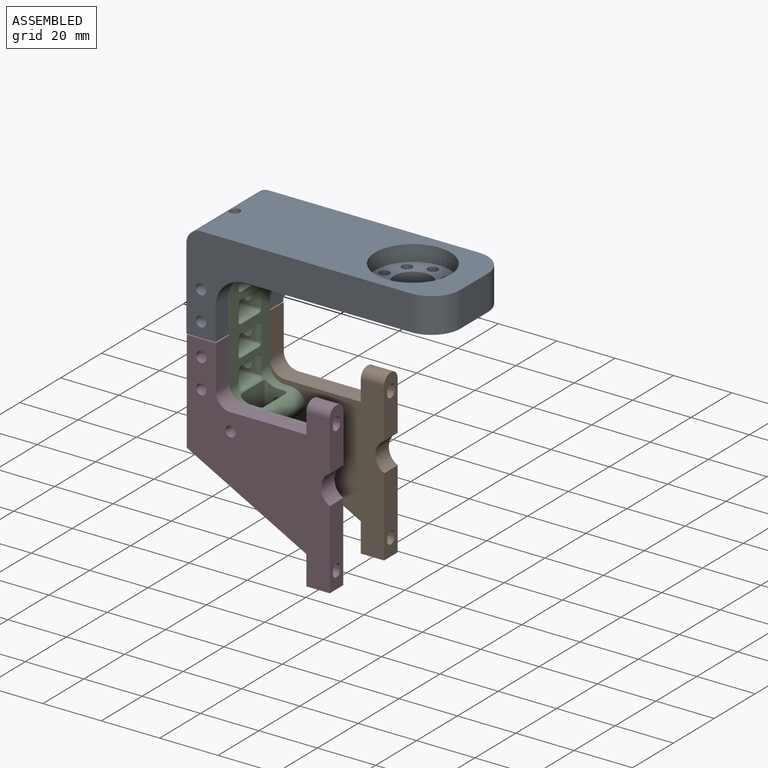
[diagram: assembled view]
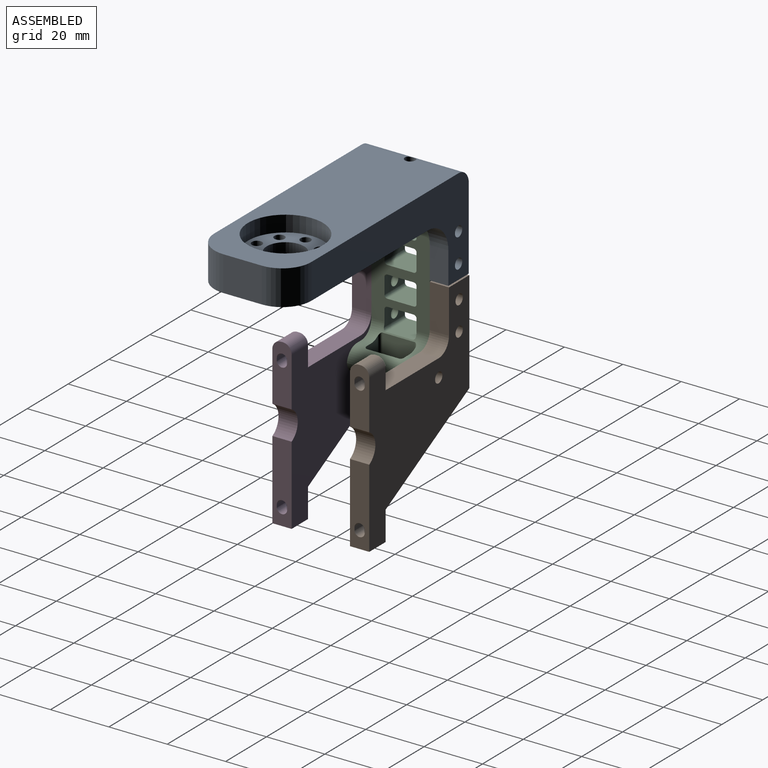
[diagram: assembled view, second angle]
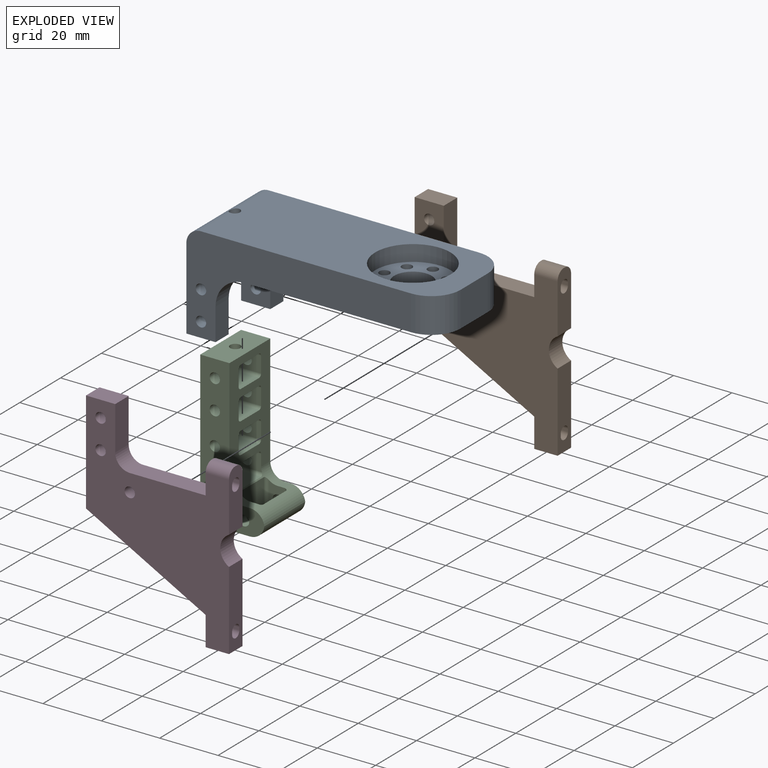
[diagram: exploded view]
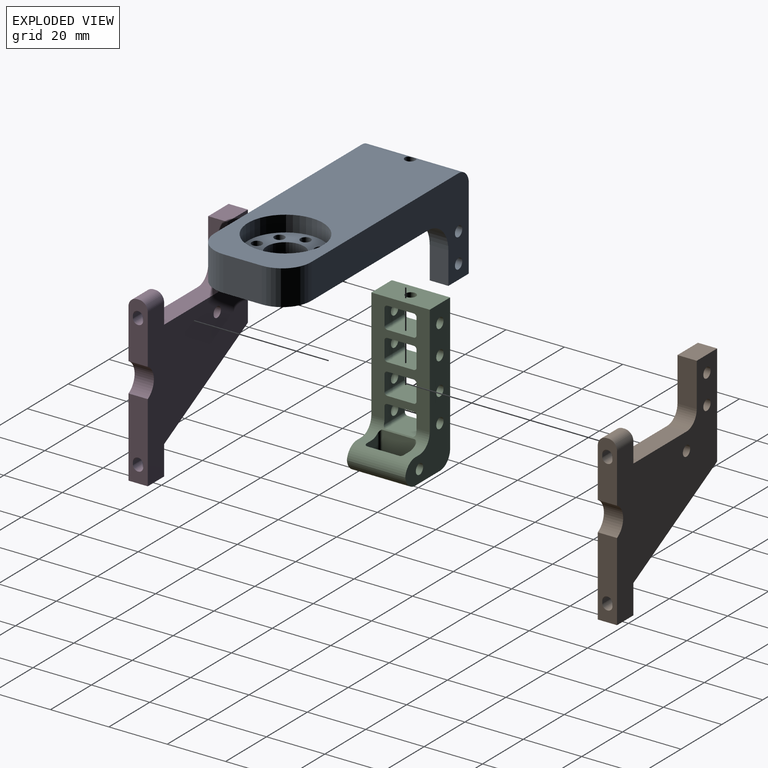
[diagram: exploded view, second angle]
ASSEMBLY  parts=4 mates=4
PART A: 33 faces, bbox 87x33.2x33 mm
  f0: cylinder r=6.41mm len=12.83mm, axis (0,0,-1), area 261.9mm2, adj f9,f30
  f1: cylinder r=1.75mm len=6.5mm, axis (0,0,-1), area 71.6mm2, adj f9,f30
  f2: cylinder r=1.75mm len=6.5mm, axis (0,0,-1), area 71.6mm2, adj f9,f30
  f3: cylinder r=1.75mm len=6.5mm, axis (0,0,-1), area 71.6mm2, adj f9,f30
  f4: cylinder r=1.75mm len=6.5mm, axis (0,0,-1), area 71.6mm2, adj f9,f30
  f5: cylinder r=1.75mm len=6.5mm, axis (0,0,-1), area 71.6mm2, adj f9,f30
  f6: cylinder r=1.75mm len=6.5mm, axis (0,0,-1), area 71.6mm2, adj f9,f30
  f7: cylinder r=1.75mm len=6.5mm, axis (0,0,-1), area 71.6mm2, adj f9,f30
  f8: cylinder r=1.75mm len=6.5mm, axis (0,0,-1), area 71.6mm2, adj f9,f30
  f9: plane 87x33.2mm, normal (0,0,1), area 2373.1mm2, adj f0,f1,f2,f3,f4,f5,f6,f7
  f10: plane 13.2x12mm, normal (1,0,0), area 158.4mm2, adj f9,f11,f15,f17
  f11: cylinder r=10mm len=12mm, axis (0,0,-1), area 188.5mm2, adj f9,f10,f12,f17
  f12: plane 77x33mm, normal (0,1,0), area 1130.2mm2, adj f9,f11,f13,f17,f21,f23,f24,f25
  f13: plane 33.2x28mm, normal (-1,0,0), area 501.2mm2, adj f9,f12,f14,f19,f20,f22,f23,f28
  f14: plane 77x33mm, normal (0,-1,0), area 1130.2mm2, adj f9,f13,f15,f17,f18,f20,f26,f27
  f15: cylinder r=10mm len=12mm, axis (0,0,-1), area 188.5mm2, adj f9,f10,f14,f17
  f16: cylinder r=1.78mm len=12mm, axis (0,0,-1), area 133.2mm2, adj f9,f17,f28
  f17: plane 82x33.2mm, normal (0,0,-1), area 2151.7mm2, adj f10,f11,f12,f14,f15,f16,f28,f29
  f18: plane 11x6.4mm, normal (1,0,0), area 70.4mm2, adj f14,f19,f20,f32
  f19: plane 21x20mm, normal (0,1,0), area 211.6mm2, adj f9,f13,f18,f20,f26,f27,f32
  f20: plane 10x6.4mm, normal (0,0,1), area 64mm2, adj f13,f14,f18,f19
  f21: plane 11x6.4mm, normal (1,0,0), area 70.4mm2, adj f12,f22,f23,f31
  f22: plane 21x20mm, normal (0,-1,0), area 211.6mm2, adj f9,f13,f21,f23,f24,f25,f31
  f23: plane 10x6.4mm, normal (0,0,1), area 64mm2, adj f12,f13,f21,f22
  f24: cylinder r=1.78mm len=6.4mm, axis (0,1,0), area 71.5mm2, adj f12,f22
  f25: cylinder r=1.78mm len=6.4mm, axis (0,1,0), area 71.5mm2, adj f12,f22
  f26: cylinder r=1.78mm len=6.4mm, axis (0,1,0), area 71.5mm2, adj f14,f19
  f27: cylinder r=1.78mm len=6.4mm, axis (0,1,0), area 71.5mm2, adj f14,f19
  f28: cylinder r=5mm len=33.2mm, axis (0,-1,0), area 255.7mm2, adj f12,f13,f14,f16,f17
  f29: cylinder r=12.9mm len=25.8mm, axis (0,0,-1), area 445.8mm2, adj f17,f30
  f30: plane 25.8x25.8mm, normal (0,0,-1), area 316.4mm2, adj f0,f1,f2,f3,f4,f5,f6,f7
  f31: cylinder r=10mm len=10mm, axis (0,1,0), area 100.5mm2, adj f9,f12,f21,f22
  f32: cylinder r=10mm len=10mm, axis (0,1,0), area 100.5mm2, adj f9,f14,f18,f19
PART B: 28 faces, bbox 49x6.6x67 mm
  f0: plane 10x6.6mm, normal (-1,0,0), area 49.5mm2, adj f4,f15,f16,f17,f18,f19,f20,f21
  f1: plane 10x6.6mm, normal (-1,0,0), area 53.4mm2, adj f9,f10,f16,f17,f22,f23,f24,f25
  f2: plane 27x6.6mm, normal (1,0,0), area 165.6mm2, adj f10,f11,f16,f17,f22,f23,f24,f25
  f3: plane 20x6.6mm, normal (1,0,0), area 115.5mm2, adj f11,f15,f16,f17,f18,f19,f20,f21
  f4: plane 26x6.6mm, normal (0,0,1), area 171.6mm2, adj f0,f5,f16,f17
  f5: cylinder r=5mm len=6.6mm, axis (0,1,0), area 51.8mm2, adj f4,f6,f16,f17
  f6: plane 15x6.6mm, normal (1,0,0), area 99mm2, adj f5,f7,f16,f17
  f7: plane 10x6.6mm, normal (0,0,1), area 66mm2, adj f6,f8,f16,f17
  f8: plane 35x6.6mm, normal (-1,0,0), area 231mm2, adj f7,f9,f16,f17
  f9: plane 41x22mm, normal (-0.47,0,-0.88), area 307.1mm2, adj f1,f8,f16,f17
  f10: plane 8x6.6mm, normal (0,0,-1), area 52.8mm2, adj f1,f2,f16,f17
  f11: cylinder r=5.67mm len=10mm, axis (0,1,0), area 80.8mm2, adj f2,f3,f16,f17
  f12: cylinder r=1.78mm len=6.6mm, axis (0,1,0), area 73.7mm2, adj f16,f17
  f13: cylinder r=1.78mm len=6.6mm, axis (0,1,0), area 73.7mm2, adj f16,f17
  f14: cylinder r=1.78mm len=6.6mm, axis (0,1,0), area 73.7mm2, adj f16,f17
  f15: plane 8x0.6mm, normal (0,0,1), area 4.8mm2, adj f0,f3,f26,f27
  f16: plane 67x49mm, normal (0,-1,0), area 1652.2mm2, adj f0,f1,f2,f3,f4,f5,f6,f7
  f17: plane 67x49mm, normal (0,1,0), area 1652.2mm2, adj f0,f1,f2,f3,f4,f5,f6,f7
  f18: cylinder r=1.78mm len=8mm, axis (1,0,0), area 42.5mm2, adj f0,f3,f19,f21
  f19: plane 8x1.03mm, normal (0,-1,0), area 8.3mm2, adj f0,f3,f18,f20
  f20: cylinder r=1.78mm len=8mm, axis (1,0,0), area 42.5mm2, adj f0,f3,f19,f21
  f21: plane 8x1.03mm, normal (0,1,0), area 8.3mm2, adj f0,f3,f18,f20
  f22: cylinder r=1.78mm len=8mm, axis (1,0,0), area 42.5mm2, adj f1,f2,f23,f25
  f23: plane 8x1.03mm, normal (0,1,0), area 8.3mm2, adj f1,f2,f22,f24
  f24: cylinder r=1.78mm len=8mm, axis (1,0,0), area 42.5mm2, adj f1,f2,f23,f25
  f25: plane 8x1.03mm, normal (0,-1,0), area 8.3mm2, adj f1,f2,f22,f24
  f26: cylinder r=3mm len=8mm, axis (-1,0,0), area 37.7mm2, adj f0,f3,f15,f17
  f27: cylinder r=3mm len=8mm, axis (1,0,0), area 37.7mm2, adj f0,f3,f15,f16
PART C: 63 faces, bbox 22x20x51.8 mm
  f0: plane 3.5x2mm, normal (0,0,1), area 7mm2, adj f9,f11,f20,f61
  f1: cylinder r=1.78mm len=3.56mm, axis (0,1,0), area 39.1mm2, adj f20,f61
  f2: plane 38x20mm, normal (1,0,0), area 461.3mm2, adj f11,f12,f20,f21,f22,f23,f24,f25
  f3: plane 46.8x20mm, normal (-1,0,0), area 609.4mm2, adj f12,f13,f20,f21,f22,f23,f24,f25
  f4: cylinder r=1.78mm len=4.5mm, axis (0,1,0), area 50.3mm2, adj f20,f53
  f5: cylinder r=1.78mm len=4.5mm, axis (0,1,0), area 50.3mm2, adj f20,f43
  f6: cylinder r=1.78mm len=4.5mm, axis (0,1,0), area 50.3mm2, adj f21,f36
  f7: cylinder r=1.78mm len=4.5mm, axis (0,1,0), area 50.3mm2, adj f21,f28
  f8: cylinder r=5mm len=20mm, axis (0,1,0), area 126.2mm2, adj f9,f19,f20,f21,f54,f55,f56,f57
  f9: cylinder r=5mm len=20mm, axis (0,1,0), area 126.2mm2, adj f0,f8,f10,f20,f21,f54,f55,f56
  f10: plane 3.5x2mm, normal (0,0,1), area 7mm2, adj f9,f11,f21,f57
  f11: cylinder r=5mm len=20mm, axis (0,1,0), area 67.5mm2, adj f0,f2,f10,f20,f21,f41,f42,f43
  f12: plane 20x10mm, normal (0,0,1), area 190.1mm2, adj f2,f3,f20,f21,f62
  f13: cylinder r=5mm len=20mm, axis (0,1,0), area 157.1mm2, adj f3,f19,f20,f21
  f14: cylinder r=1.78mm len=4.5mm, axis (0,1,0), area 50.3mm2, adj f21,f52
  f15: cylinder r=1.78mm len=4.5mm, axis (0,1,0), area 50.3mm2, adj f21,f42
  f16: cylinder r=1.78mm len=3.56mm, axis (0,1,0), area 39.1mm2, adj f21,f57
  f17: cylinder r=1.78mm len=4.5mm, axis (0,1,0), area 50.3mm2, adj f20,f37
  f18: cylinder r=1.78mm len=4.5mm, axis (0,1,0), area 50.3mm2, adj f20,f29
  f19: plane 20x12mm, normal (0,0,-1), area 162mm2, adj f8,f13,f20,f21,f57,f58,f59,f60
  f20: plane 51.8x21.96mm, normal (0,-1,0), area 563.2mm2, adj f0,f1,f2,f3,f4,f5,f8,f9
  f21: plane 51.8x21.96mm, normal (0,1,0), area 563.2mm2, adj f2,f3,f6,f7,f8,f9,f10,f11
  f22: cylinder r=1mm len=10mm, axis (1,0,0), area 15.7mm2, adj f2,f3,f27,f28
  f23: cylinder r=1mm len=10mm, axis (1,0,0), area 15.7mm2, adj f2,f3,f24,f28
  f24: plane 10x9mm, normal (0,0,-1), area 80.1mm2, adj f2,f3,f23,f25,f62
  f25: cylinder r=1mm len=10mm, axis (1,0,0), area 15.7mm2, adj f2,f3,f24,f29
  f26: cylinder r=1mm len=10mm, axis (1,0,0), area 15.7mm2, adj f2,f3,f27,f29
  f27: plane 10x9mm, normal (0,0,1), area 90mm2, adj f2,f3,f22,f26
  f28: plane 10x5.5mm, normal (0,-1,0), area 45.1mm2, adj f2,f3,f7,f22,f23
  f29: plane 10x5.5mm, normal (0,1,0), area 45.1mm2, adj f2,f3,f18,f25,f26
  f30: cylinder r=1mm len=10mm, axis (1,0,0), area 15.7mm2, adj f2,f3,f35,f36
  f31: cylinder r=1mm len=10mm, axis (1,0,0), area 15.7mm2, adj f2,f3,f32,f36
  f32: plane 10x9mm, normal (0,0,-1), area 90mm2, adj f2,f3,f31,f33
  f33: cylinder r=1mm len=10mm, axis (1,0,0), area 15.7mm2, adj f2,f3,f32,f37
  f34: cylinder r=1mm len=10mm, axis (1,0,0), area 15.7mm2, adj f2,f3,f35,f37
  f35: plane 10x9mm, normal (0,0,1), area 90mm2, adj f2,f3,f30,f34
  f36: plane 10x5.5mm, normal (0,-1,0), area 45.1mm2, adj f2,f3,f6,f30,f31
  f37: plane 10x5.5mm, normal (0,1,0), area 45.1mm2, adj f2,f3,f17,f33,f34
  f38: cylinder r=1mm len=10mm, axis (1,0,0), area 15.7mm2, adj f2,f3,f39,f42
  f39: plane 10x9mm, normal (0,0,-1), area 90mm2, adj f2,f3,f38,f40
  f40: cylinder r=1mm len=10mm, axis (1,0,0), area 15.7mm2, adj f2,f3,f39,f43
  f41: cylinder r=1mm len=10.71mm, axis (1,0,0), area 16.5mm2, adj f3,f11,f42,f45
  f42: plane 10.25x5.5mm, normal (0,-1,0), area 45.2mm2, adj f2,f3,f11,f15,f38,f41
  f43: plane 10.25x5.5mm, normal (0,1,0), area 45.2mm2, adj f2,f3,f5,f11,f40,f44
  f44: cylinder r=1mm len=10.71mm, axis (1,0,0), area 16.5mm2, adj f3,f11,f43,f45
  f45: plane 10.71x9mm, normal (0,0,1), area 96.4mm2, adj f3,f11,f41,f44
  f46: cylinder r=1mm len=10mm, axis (1,0,0), area 15.7mm2, adj f2,f3,f47,f53
  f47: plane 10x9mm, normal (0,0,1), area 90mm2, adj f2,f3,f46,f48
  f48: cylinder r=1mm len=10mm, axis (1,0,0), area 15.7mm2, adj f2,f3,f47,f52
  f49: cylinder r=1mm len=10mm, axis (1,0,0), area 15.7mm2, adj f2,f3,f50,f52
  f50: plane 10x9mm, normal (0,0,-1), area 90mm2, adj f2,f3,f49,f51
  f51: cylinder r=1mm len=10mm, axis (1,0,0), area 15.7mm2, adj f2,f3,f50,f53
  f52: plane 10x5.5mm, normal (0,-1,0), area 45.1mm2, adj f2,f3,f14,f48,f49
  f53: plane 10x5.5mm, normal (0,1,0), area 45.1mm2, adj f2,f3,f4,f46,f51
  f54: cylinder r=1mm len=8.76mm, axis (0,0,1), area 13.4mm2, adj f8,f9,f56,f57
  f55: cylinder r=1mm len=8.76mm, axis (0,0,1), area 13.4mm2, adj f8,f9,f56,f61
  f56: plane 11x8.36mm, normal (-1,0,0), area 92mm2, adj f8,f9,f54,f55
  f57: plane 9.83x5.5mm, normal (0,-1,0), area 39.4mm2, adj f8,f9,f10,f11,f16,f19,f54,f58
  f58: cylinder r=1mm len=10.85mm, axis (0,0,1), area 16.4mm2, adj f11,f19,f57,f59
  f59: plane 11x10.85mm, normal (1,0,0), area 119.3mm2, adj f11,f19,f58,f60
  f60: cylinder r=1mm len=10.85mm, axis (0,0,1), area 16.4mm2, adj f11,f19,f59,f61
  f61: plane 9.83x5.5mm, normal (0,1,0), area 39.4mm2, adj f0,f1,f8,f9,f11,f19,f55,f60
  f62: cylinder r=1.78mm len=3.56mm, axis (0,0,1), area 29.2mm2, adj f12,f24
PART D: same geometry as B
PLACE A rot(axis=(1,0,0),180deg) t=(-42.52,15.54,61.28)mm
PLACE B t=(-1.52,15.74,-39.14)mm
PLACE C t=(-42.52,9.14,6.28)mm
PLACE D t=(-1.52,-10.86,-39.14)mm
MATE fastened C.f4 <-> D.f12  axis (0,-1,0) through (-37.52,-10.86,22.26)mm
MATE planar A.f19 <-> C.f21  axis (0,-1,0) through (-36.78,9.14,39.67)mm
MATE planar A.f9 <-> C.f12  axis (0,0,-1) through (2.05,-1.06,49.28)mm
MATE fastened B.f12 <-> C.f4  axis (0,-1,0) through (-37.52,9.14,22.26)mm
